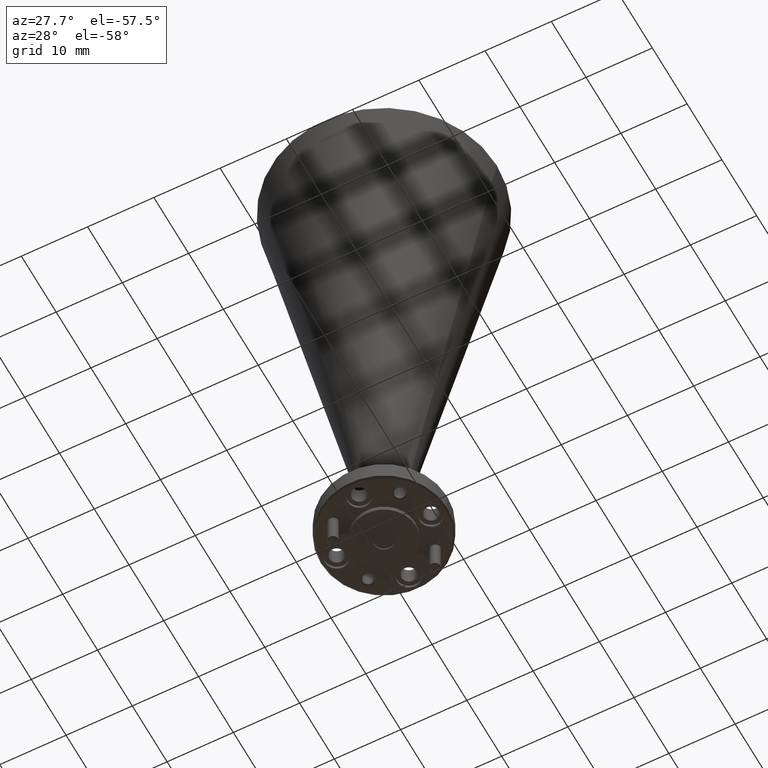
[diagram: clean part render]
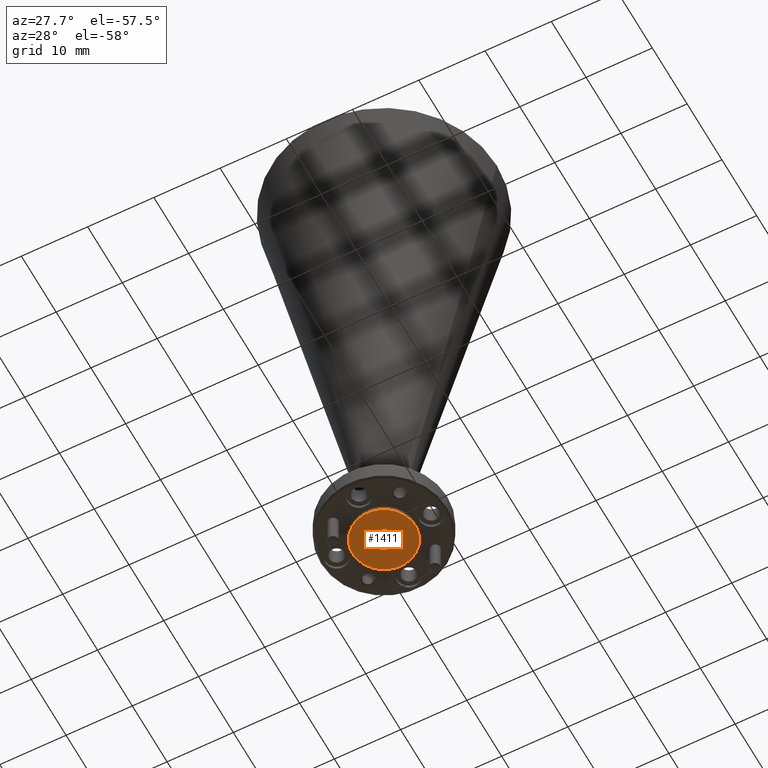
[diagram: same view with one face highlighted and labeled with its STEP entity id]
A machine part, auxiliary view. The second image highlights one B-rep face of the part: STEP entity #1411.
In plain terms, the highlighted planar face has unit normal (0, -0, 1).
Its self-contained STEP definition (entity closure, byte-faithful):
#25 = DIRECTION ( 'NONE',  ( 0.0000000000000000000, -0.0000000000000000000, 1.000000000000000000 ) ) ;
#43 = DIRECTION ( 'NONE',  ( 1.000000000000000000, 0.0000000000000000000, 0.0000000000000000000 ) ) ;
#203 = CARTESIAN_POINT ( 'NONE',  ( 1.386541434672055000, 1.390276906475814300, -0.5561406525522093500 ) ) ;
#304 = ORIENTED_EDGE ( 'NONE', *, *, #2069, .F. ) ;
#353 = CARTESIAN_POINT ( 'NONE',  ( 1.011541434672055000, 1.390276906475814300, -0.5561406525522093500 ) ) ;
#390 = EDGE_CURVE ( 'NONE', #1855, #1897, #1781, .T. ) ;
#421 = CIRCLE ( 'NONE', #753, 0.06249999999999995100 ) ;
#436 = DIRECTION ( 'NONE',  ( 1.000000000000000000, 0.0000000000000000000, 0.0000000000000000000 ) ) ;
#451 = ORIENTED_EDGE ( 'NONE', *, *, #390, .F. ) ;
#587 = DIRECTION ( 'NONE',  ( -0.0000000000000000000, -0.0000000000000000000, 1.000000000000000000 ) ) ;
#589 = AXIS2_PLACEMENT_3D ( 'NONE', #1465, #1949, #952 ) ;
#610 = CARTESIAN_POINT ( 'NONE',  ( 1.199041434672055000, 1.390276906475814300, -0.5561406525522093500 ) ) ;
#670 = CARTESIAN_POINT ( 'NONE',  ( 1.199041434672055000, 1.577776906475814500, -0.5561406525522087900 ) ) ;
#709 = EDGE_LOOP ( 'NONE', ( #304, #451 ) ) ;
#724 = FACE_OUTER_BOUND ( 'NONE', #709, .T. ) ;
#736 = EDGE_CURVE ( 'NONE', #1846, #1598, #421, .T. ) ;
#753 = AXIS2_PLACEMENT_3D ( 'NONE', #610, #1090, #436 ) ;
#754 = DIRECTION ( 'NONE',  ( 1.000000000000000000, 0.0000000000000000000, 0.0000000000000000000 ) ) ;
#851 = ORIENTED_EDGE ( 'NONE', *, *, #736, .T. ) ;
#952 = DIRECTION ( 'NONE',  ( 1.000000000000000000, 0.0000000000000000000, 0.0000000000000000000 ) ) ;
#1008 = DIRECTION ( 'NONE',  ( 1.000000000000000000, 0.0000000000000000000, 0.0000000000000000000 ) ) ;
#1022 = CIRCLE ( 'NONE', #589, 0.06249999999999995100 ) ;
#1090 = DIRECTION ( 'NONE',  ( -0.0000000000000000000, -0.0000000000000000000, 1.000000000000000000 ) ) ;
#1101 = EDGE_LOOP ( 'NONE', ( #1948, #851 ) ) ;
#1149 = CARTESIAN_POINT ( 'NONE',  ( 1.136541434672055000, 1.390276906475814300, -0.5561406525522093500 ) ) ;
#1213 = CARTESIAN_POINT ( 'NONE',  ( 1.199041434672055000, 1.390276906475814300, -0.5561406525522093500 ) ) ;
#1280 = AXIS2_PLACEMENT_3D ( 'NONE', #1213, #587, #754 ) ;
#1411 = ADVANCED_FACE ( 'NONE', ( #724, #2037 ), #1951, .F. ) ;
#1465 = CARTESIAN_POINT ( 'NONE',  ( 1.199041434672055000, 1.390276906475814300, -0.5561406525522093500 ) ) ;
#1518 = AXIS2_PLACEMENT_3D ( 'NONE', #670, #25, #43 ) ;
#1535 = CIRCLE ( 'NONE', #2075, 0.1875000000000001100 ) ;
#1598 = VERTEX_POINT ( 'NONE', #1840 ) ;
#1662 = CARTESIAN_POINT ( 'NONE',  ( 1.199041434672055000, 1.390276906475814300, -0.5561406525522093500 ) ) ;
#1694 = EDGE_CURVE ( 'NONE', #1598, #1846, #1022, .T. ) ;
#1781 = CIRCLE ( 'NONE', #1280, 0.1875000000000001100 ) ;
#1840 = CARTESIAN_POINT ( 'NONE',  ( 1.261541434672054800, 1.390276906475814300, -0.5561406525522093500 ) ) ;
#1846 = VERTEX_POINT ( 'NONE', #1149 ) ;
#1855 = VERTEX_POINT ( 'NONE', #353 ) ;
#1897 = VERTEX_POINT ( 'NONE', #203 ) ;
#1948 = ORIENTED_EDGE ( 'NONE', *, *, #1694, .T. ) ;
#1949 = DIRECTION ( 'NONE',  ( -0.0000000000000000000, -0.0000000000000000000, 1.000000000000000000 ) ) ;
#1951 = PLANE ( 'NONE',  #1518 ) ;
#2005 = DIRECTION ( 'NONE',  ( -0.0000000000000000000, -0.0000000000000000000, 1.000000000000000000 ) ) ;
#2037 = FACE_BOUND ( 'NONE', #1101, .T. ) ;
#2069 = EDGE_CURVE ( 'NONE', #1897, #1855, #1535, .T. ) ;
#2075 = AXIS2_PLACEMENT_3D ( 'NONE', #1662, #2005, #1008 ) ;